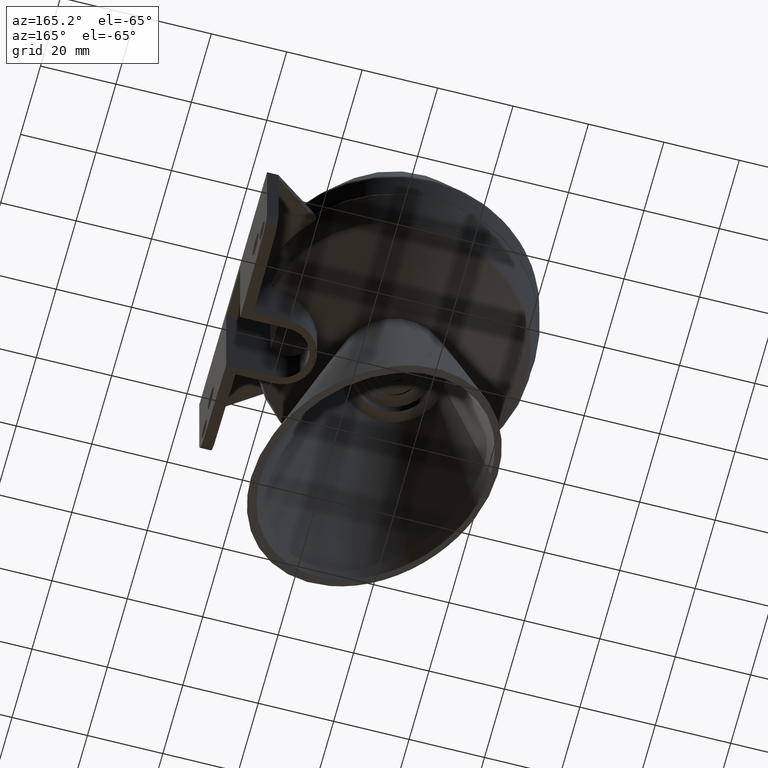
[diagram: clean part render]
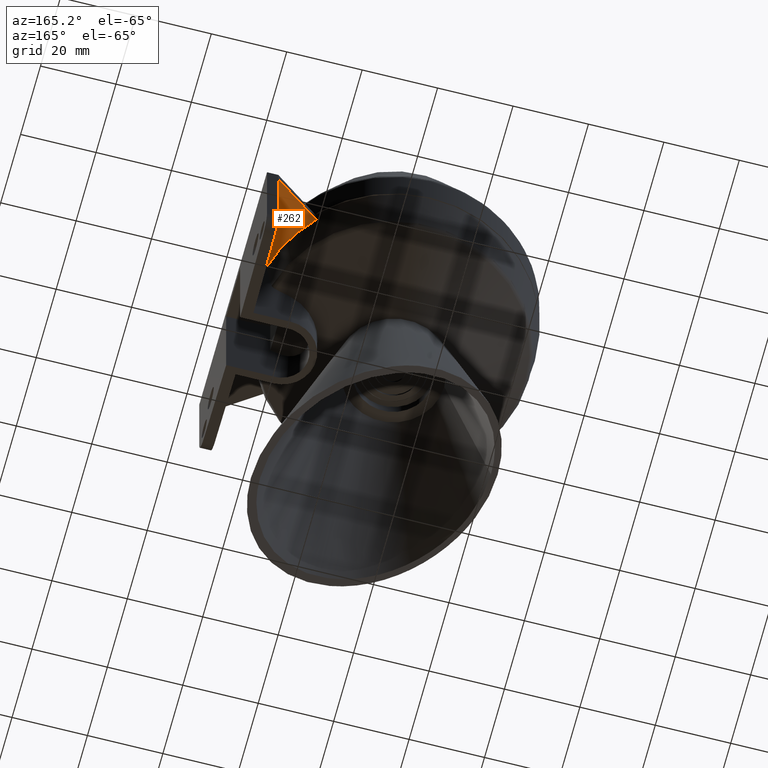
[diagram: same view with one face highlighted and labeled with its STEP entity id]
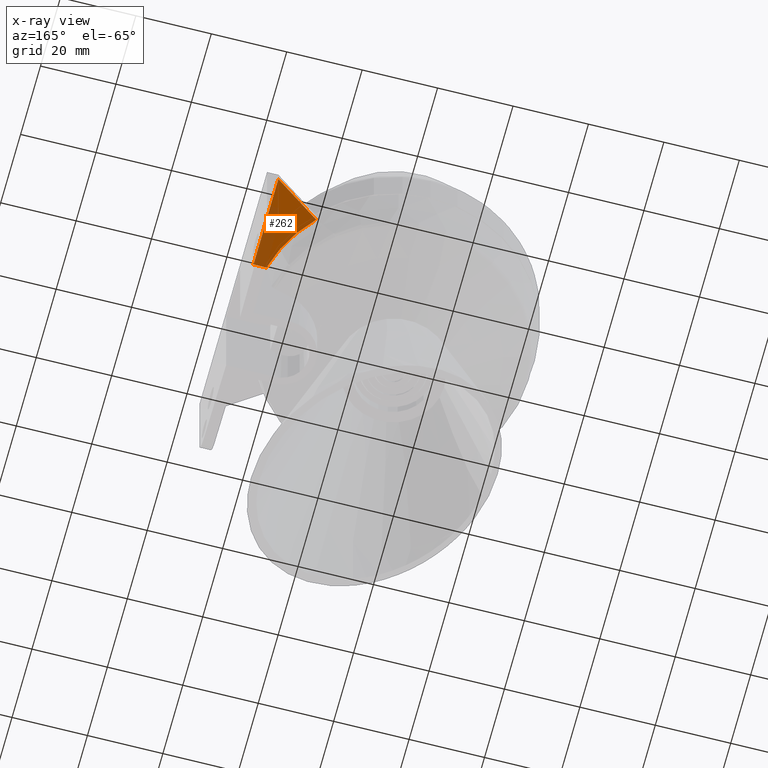
[diagram: x-ray of the same camera — body ghosted, the highlighted face saturated]
A machine part, auxiliary view. The second image highlights one B-rep face of the part: STEP entity #262.
The next image is the same camera in x-ray: the body ghosted, the highlighted face saturated — about 31% of this face is hidden behind the body in this view.
In plain terms, the highlighted planar face has unit normal (0, 0, -1).
Its self-contained STEP definition (entity closure, byte-faithful):
#72=LINE('',#1451,#121);
#88=LINE('',#1518,#137);
#89=LINE('',#1520,#138);
#121=VECTOR('',#1150,1.);
#137=VECTOR('',#1212,1.);
#138=VECTOR('',#1213,1.);
#167=FACE_OUTER_BOUND('',#427,.T.);
#210=PLANE('',#986);
#262=ADVANCED_FACE('',(#167),#210,.T.);
#427=EDGE_LOOP('',(#586,#587,#588,#589));
#586=ORIENTED_EDGE('',*,*,#830,.T.);
#587=ORIENTED_EDGE('',*,*,#801,.T.);
#588=ORIENTED_EDGE('',*,*,#831,.T.);
#589=ORIENTED_EDGE('',*,*,#832,.F.);
#706=VERTEX_POINT('',#1434);
#713=VERTEX_POINT('',#1452);
#732=VERTEX_POINT('',#1517);
#733=VERTEX_POINT('',#1519);
#801=EDGE_CURVE('',#713,#706,#72,.T.);
#830=EDGE_CURVE('',#732,#713,#895,.T.);
#831=EDGE_CURVE('',#706,#733,#88,.T.);
#832=EDGE_CURVE('',#732,#733,#89,.T.);
#895=CIRCLE('',#985,37.173589388762);
#985=AXIS2_PLACEMENT_3D('',#1516,#1210,#1211);
#986=AXIS2_PLACEMENT_3D('',#1521,#1214,#1215);
#1150=DIRECTION('',(0.819152044288993,0.573576436351045,0.));
#1210=DIRECTION('',(0.,0.,1.));
#1211=DIRECTION('',(-1.,0.,0.));
#1212=DIRECTION('',(0.,-1.,0.));
#1213=DIRECTION('',(1.,2.1350442781253E-015,0.));
#1214=DIRECTION('',(0.,0.,-1.));
#1215=DIRECTION('',(-1.,0.,0.));
#1434=CARTESIAN_POINT('',(39.5,34.,24.6));
#1451=CARTESIAN_POINT('',(41.068789772135,35.0984784243152,24.6));
#1452=CARTESIAN_POINT('',(27.172342530814,25.3680813116088,24.6));
#1516=CARTESIAN_POINT('',(0.,0.,24.6));
#1517=CARTESIAN_POINT('',(36.067655150346,9.00000000000004,24.6));
#1518=CARTESIAN_POINT('',(39.5,54.5590529598418,24.6));
#1519=CARTESIAN_POINT('',(39.5,9.00000000000005,24.6));
#1520=CARTESIAN_POINT('',(42.5000000000001,9.00000000000006,24.6));
#1521=CARTESIAN_POINT('',(27.4423487844675,54.5590529598418,24.6));